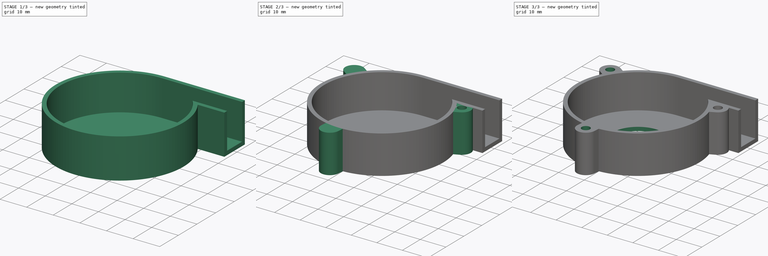
[diagram: build sequence overview — one tinted view per stage of 3, left to right]
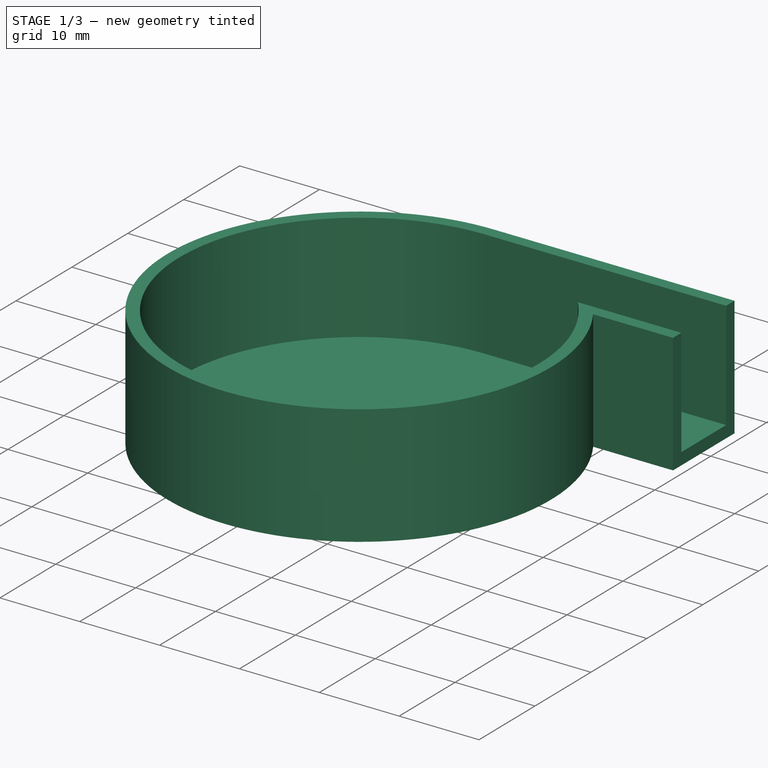
[diagram: stage 1 of 3 — iso view after this stage's code; geometry added in this stage tinted green]
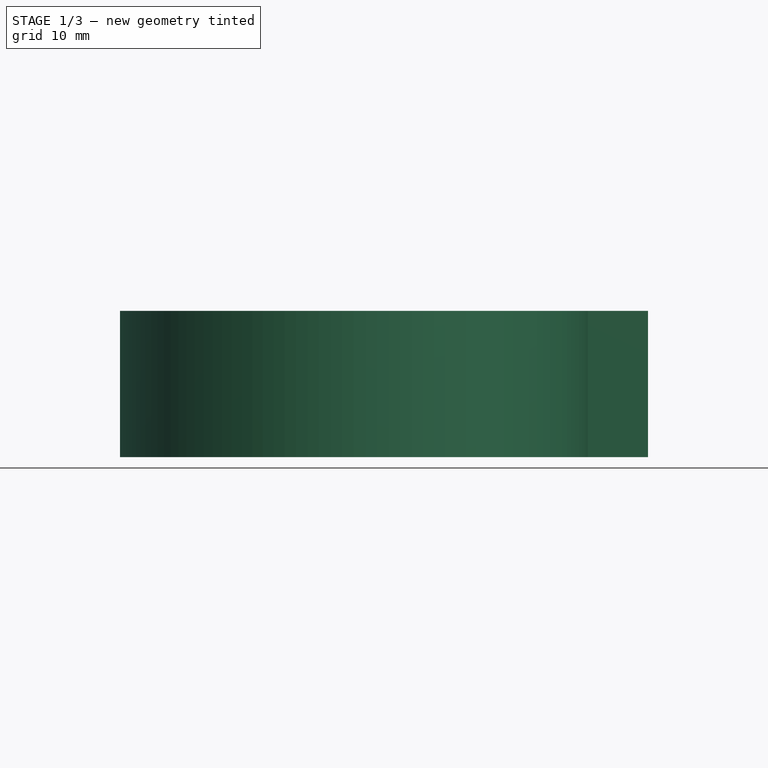
[diagram: stage 1 of 3 — front view after this stage's code; geometry added in this stage tinted green]
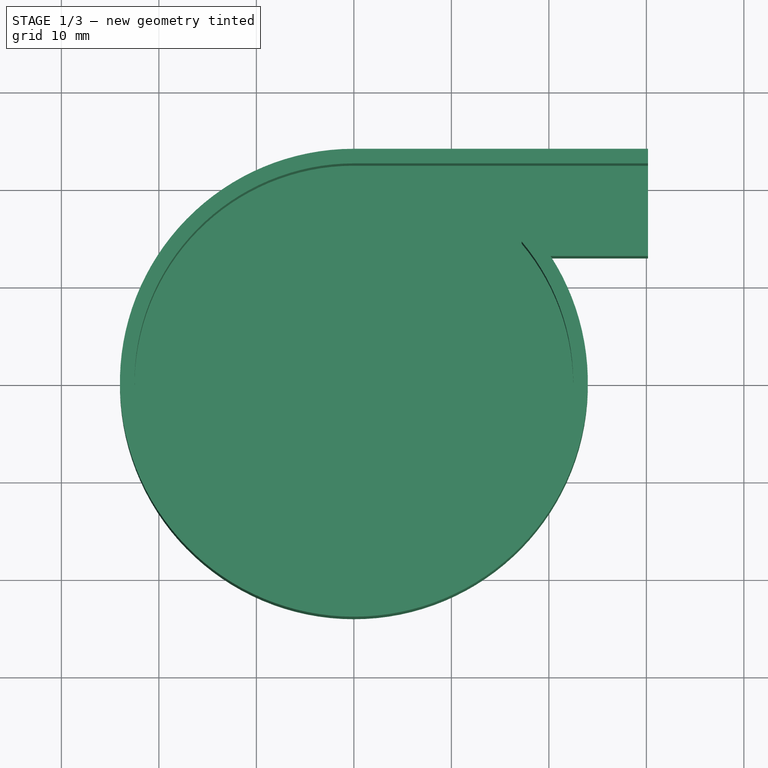
[diagram: stage 1 of 3 — top view after this stage's code; geometry added in this stage tinted green]
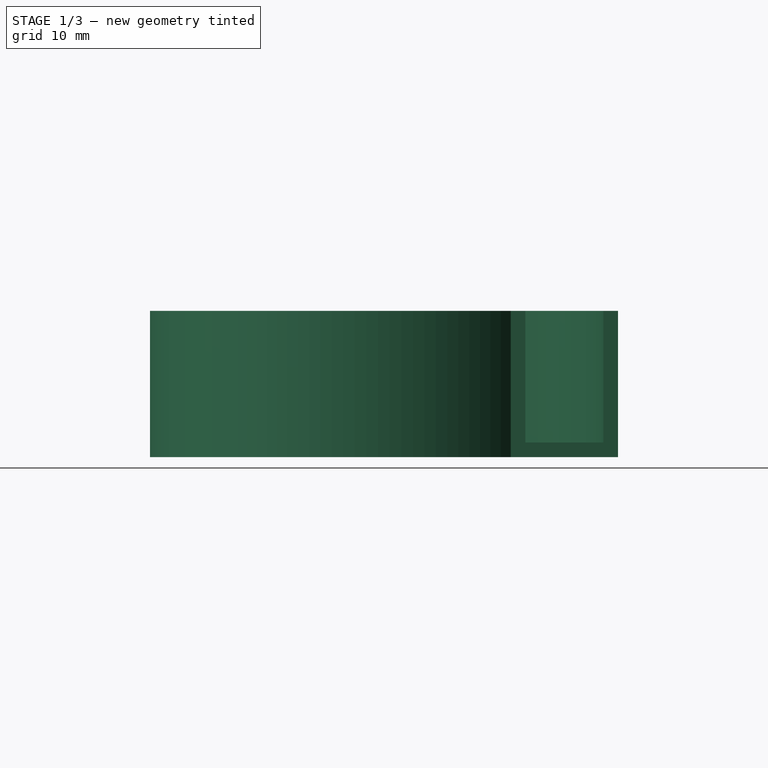
[diagram: stage 1 of 3 — right view after this stage's code; geometry added in this stage tinted green]
FCSTD DOCUMENT  (FreeCAD 0.16R5239 (Git))
Label: fan-case-front2
License: All rights reserved
LicenseURL: http://en.wikipedia.org/wiki/All_rights_reserved
objects: Sketcher::SketchObject×5, PartDesign::Pocket×3, PartDesign::Pad×2, PartDesign::PolarPattern×2
note: 17 computed .brp shape members not serialized (recipe doc carries the construction recipe); baked Part::Feature solids carry a one-line shape summary decoded from their .brp

FEATURE [Sketcher::SketchObject] Sketch
  sketch-geometry (4):
    g0: ArcOfCircle CenterX=0 CenterY=0 CenterZ=0 NormalX=0 NormalY=0 NormalZ=1 Radius=24 StartAngle=1.5708 EndAngle=6.8556
    g1: LineSegment StartX=-2e-12 StartY=24 StartZ=0 EndX=30.1742 EndY=24 EndZ=0
    g2: LineSegment StartX=30.1742 StartY=24 StartZ=0 EndX=30.1742 EndY=13 EndZ=0
    g3: LineSegment StartX=30.1742 StartY=13 StartZ=0 EndX=20.1742 EndY=13 EndZ=0
  constraints (12):
    c: Coincident(g0,g-1)
    c: Radius(g0) = 24
    c: Horizontal(g1)
    c: Coincident(g1,g2)
    c: Vertical(g2)
    c: Coincident(g2,g3)
    c: Horizontal(g3)
    c: PointOnObject(g1,g-2)
    c: Coincident(g0,g3)
    c: Coincident(g1,g0)
    c: DistanceY(g2) = -11
    c: DistanceX(g0,g2) = 10
FEATURE [PartDesign::Pad] Pad
  Length = 15
  Length2 = 100
  Sketch = -> Sketch
  Type = 0
FEATURE [Sketcher::SketchObject] Sketch001
  ExternalGeometry = -> [Pad]
  Placement = pos=(0,0,15) rot=(0,0,1;0rad)
  Support = -> Pad [Face6]
  sketch-geometry (4):
    g0: ArcOfCircle CenterX=0 CenterY=0 CenterZ=0 NormalX=0 NormalY=0 NormalZ=1 Radius=22.5 StartAngle=1.5708 EndAngle=6.98348
    g1: LineSegment StartX=0 StartY=22.5 StartZ=0 EndX=30.1742 EndY=22.5 EndZ=0
    g2: LineSegment StartX=30.1742 StartY=22.5 StartZ=0 EndX=30.1742 EndY=14.5 EndZ=0
    g3: LineSegment StartX=30.1742 StartY=14.5 StartZ=0 EndX=17.2047 EndY=14.5 EndZ=0
  constraints (11):
    c: Coincident(g0,g-1)
    c: PointOnObject(g0,g-2)
    c: Tangent(g0,g1) = 1.5708
    c: Coincident(g1,g2)
    c: Coincident(g2,g3)
    c: Horizontal(g3)
    c: Coincident(g3,g0)
    c: Vertical(g2)
    c: PointOnObject(g1,g-3)
    c: DistanceY(g1,g-3) = 1.5
    c: DistanceY(g2,g-3) = -1.5
FEATURE [PartDesign::Pocket] Pocket
  Length = 13.5
  Sketch = -> Sketch001
  Type = 0
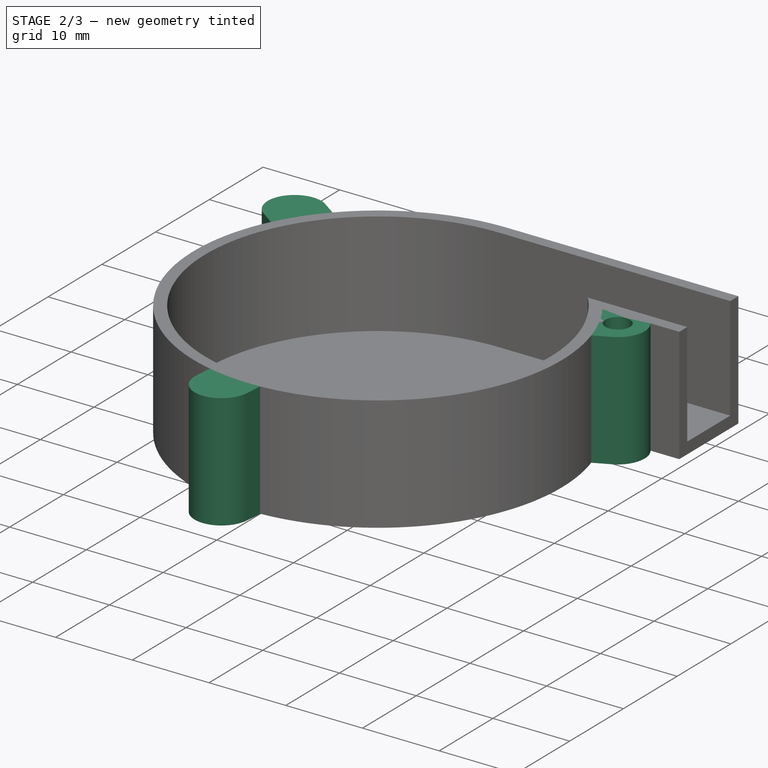
[diagram: stage 2 of 3 — iso view after this stage's code; geometry added in this stage tinted green]
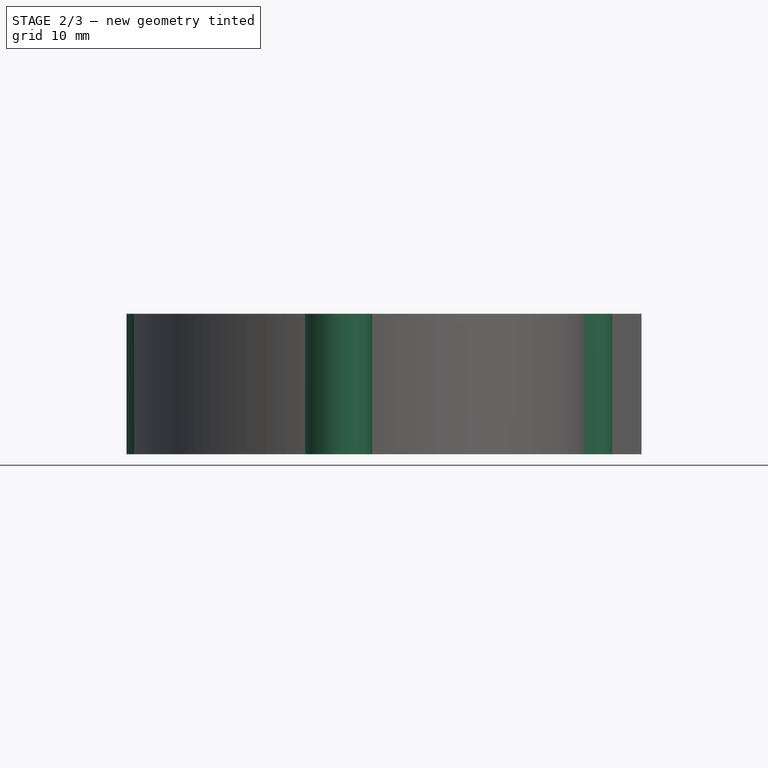
[diagram: stage 2 of 3 — front view after this stage's code; geometry added in this stage tinted green]
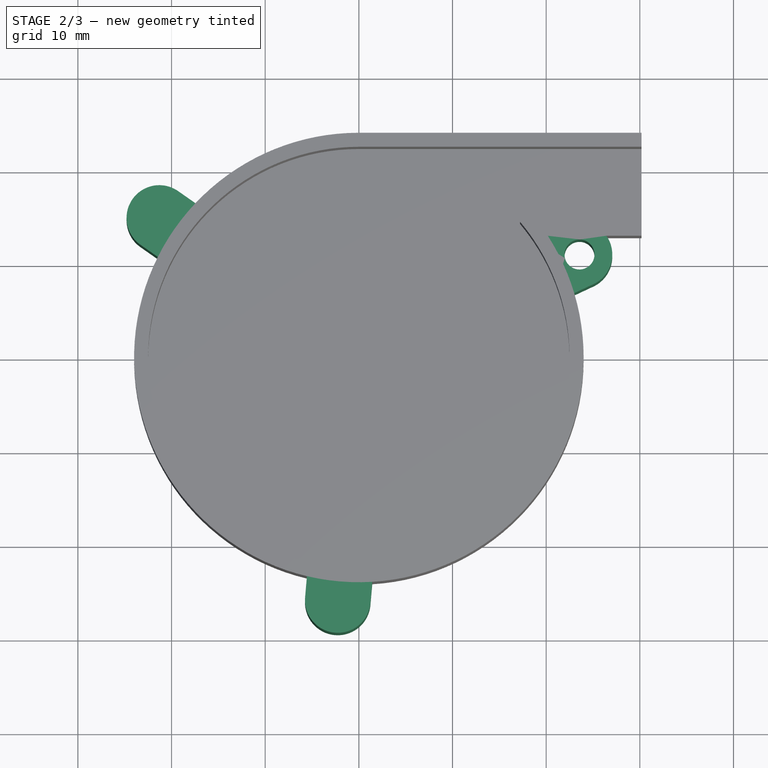
[diagram: stage 2 of 3 — top view after this stage's code; geometry added in this stage tinted green]
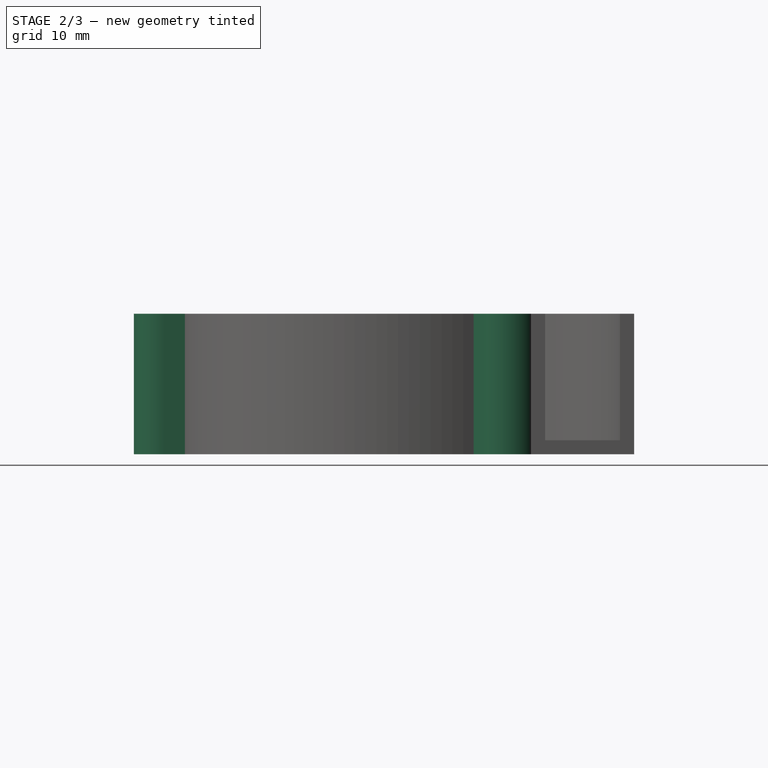
[diagram: stage 2 of 3 — right view after this stage's code; geometry added in this stage tinted green]
FEATURE [Sketcher::SketchObject] Sketch007
  ExternalGeometry = -> [Pocket]
  Placement = pos=(0,0,15) rot=(0,0,1;0rad)
  Support = -> Pocket [Face5]
  sketch-geometry (5):
    g0: ArcOfCircle CenterX=23.5584 CenterY=11 CenterZ=0 NormalX=0 NormalY=0 NormalZ=1 Radius=3.5 StartAngle=5.14923 EndAngle=8.29082
    g1: LineSegment StartX=21.6197 StartY=6.23202 StartZ=0 EndX=25.0392 EndY=7.82867 EndZ=0
    g2: LineSegment StartX=18.6582 StartY=12.5747 StartZ=0 EndX=22.0777 EndY=14.1713 EndZ=0
    g3: ArcOfCircle CenterX=0 CenterY=0 CenterZ=0 NormalX=0 NormalY=0 NormalZ=1 Radius=22.5 StartAngle=0.280649 EndAngle=0.593028
    g4: LineSegment [constr] StartX=17.2047 StartY=14.5 StartZ=0 EndX=23.5585 EndY=14.5 EndZ=0
  constraints (17):
    c: Radius(g0) = 3.5
    c: Tangent(g1,g0)
    c: Tangent(g2,g0)
    c: Parallel(g2,g1)
    c: Equal(g1,g2)
    c: Coincident(g0,g1)
    c: Coincident(g0,g2)
    c: Coincident(g3,g-1)
    c: Coincident(g3,g1)
    c: PointOnObject(g3,g2)
    c: Coincident(g2,g3)
    c: Distance(g1) = 3.77389
    c: PointOnObject(g2,g-3)
    c: Coincident(g4,g-3)
    c: Horizontal(g4)
    c: Tangent(g4,g0)
    c: PointOnObject(g4,g0)
FEATURE [PartDesign::Pad] Pad001
  Length = 10
  Length2 = 100
  Reversed = true
  Sketch = -> Sketch007
  Type = 3
  UpToFace = -> Pocket [Face4]
FEATURE [PartDesign::PolarPattern] PolarPattern
  Angle = 360
  Axis = -> Sketch007 [N_Axis]
  Occurrences = 3
  Originals = -> [Pad001]
FEATURE [Sketcher::SketchObject] Sketch008
  ExternalGeometry = -> [PolarPattern]
  Placement = pos=(0,0,15) rot=(0,0,1;0rad)
  Support = -> PolarPattern [Face39]
  sketch-geometry (1):
    g0: Circle CenterX=23.5584 CenterY=11 CenterZ=0 NormalX=0 NormalY=0 NormalZ=1 Radius=1.6
  constraints (2):
    c: Coincident(g0,g-3)
    c: Radius(g0) = 1.6
FEATURE [PartDesign::Pocket] Pocket001
  Length = 0
  Sketch = -> Sketch008
  Type = 3
  UpToFace = -> PolarPattern [Face4]
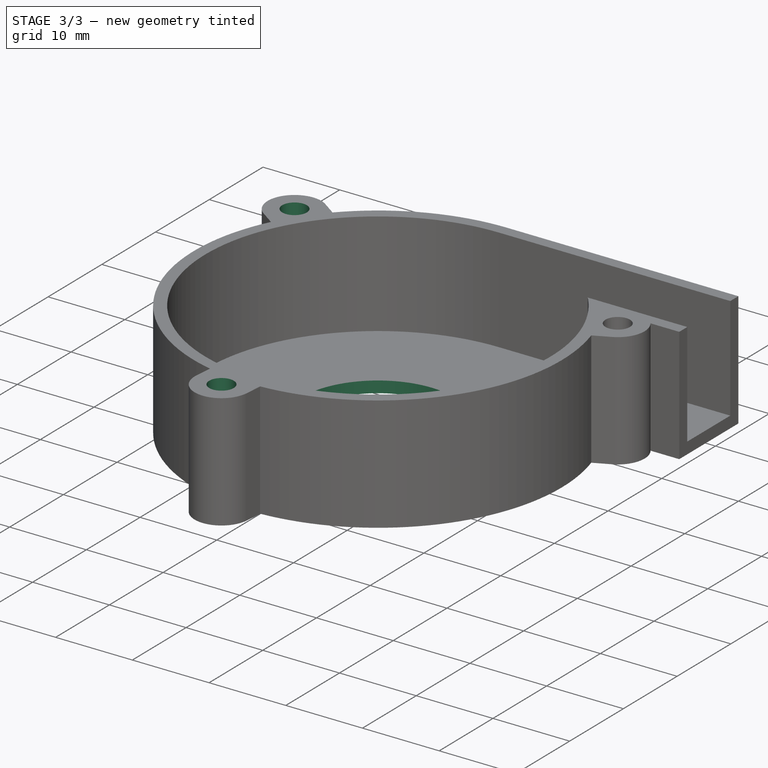
[diagram: stage 3 of 3 — iso view after this stage's code; geometry added in this stage tinted green]
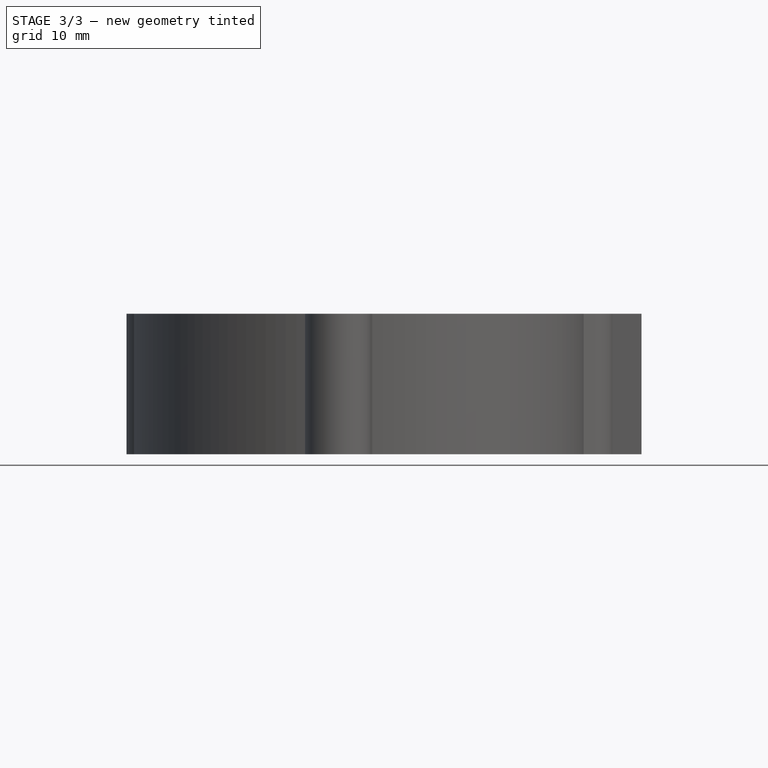
[diagram: stage 3 of 3 — front view after this stage's code; geometry added in this stage tinted green]
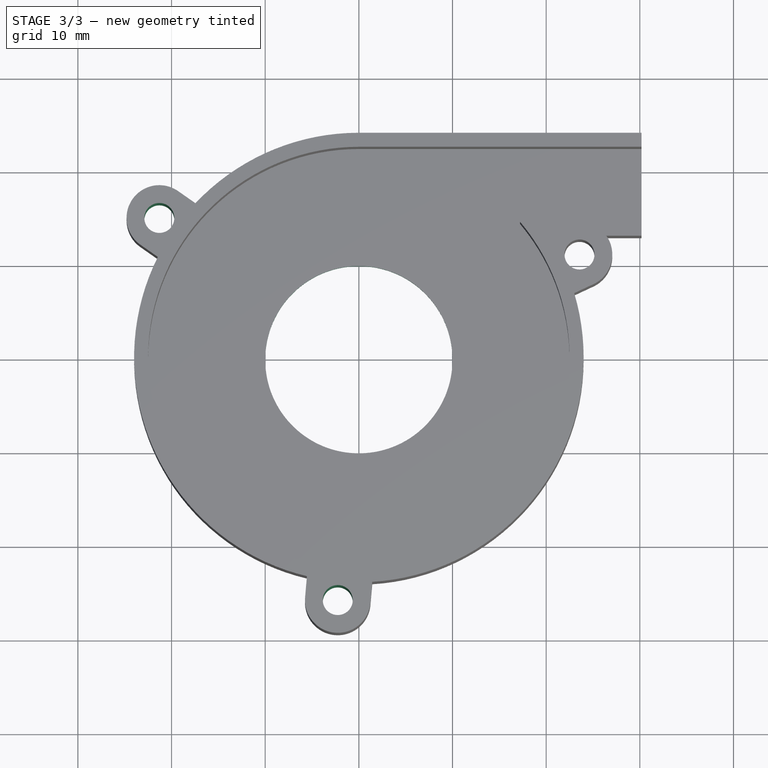
[diagram: stage 3 of 3 — top view after this stage's code; geometry added in this stage tinted green]
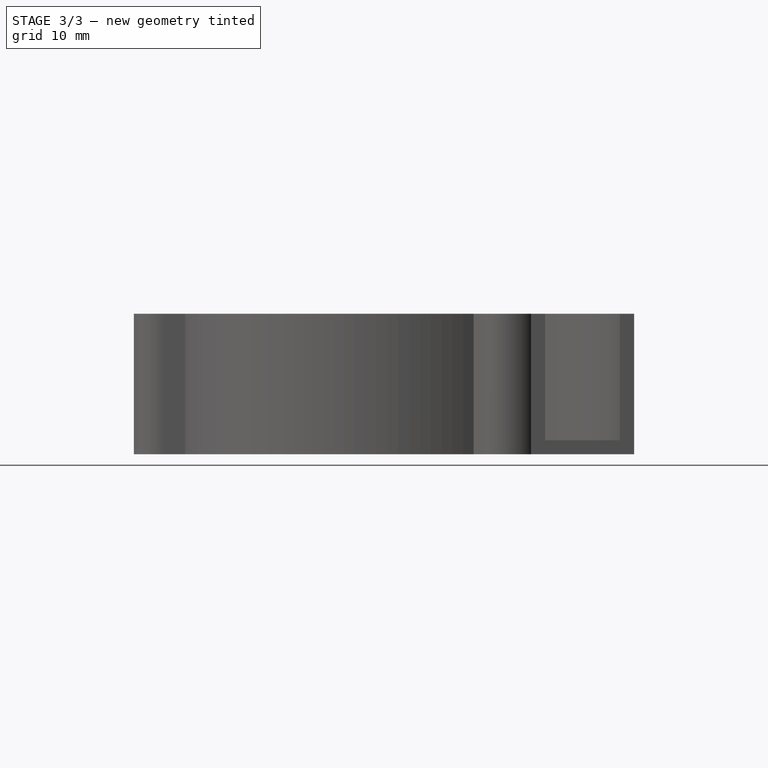
[diagram: stage 3 of 3 — right view after this stage's code; geometry added in this stage tinted green]
FEATURE [PartDesign::PolarPattern] PolarPattern001
  Angle = 360
  Axis = -> Sketch008 [N_Axis]
  Occurrences = 3
  Originals = -> [Pocket001]
FEATURE [Sketcher::SketchObject] Sketch009
  Placement = pos=(0,0,0) rot=(1,0,0;3.14159rad)
  Support = -> PolarPattern001 [Face4]
  sketch-geometry (1):
    g0: Circle CenterX=0 CenterY=0 CenterZ=0 NormalX=0 NormalY=0 NormalZ=1 Radius=10
  constraints (2):
    c: Coincident(g0,g-1)
    c: Radius(g0) = 10
FEATURE [PartDesign::Pocket] Pocket002
  Length = 5
  Sketch = -> Sketch009
  Type = 0
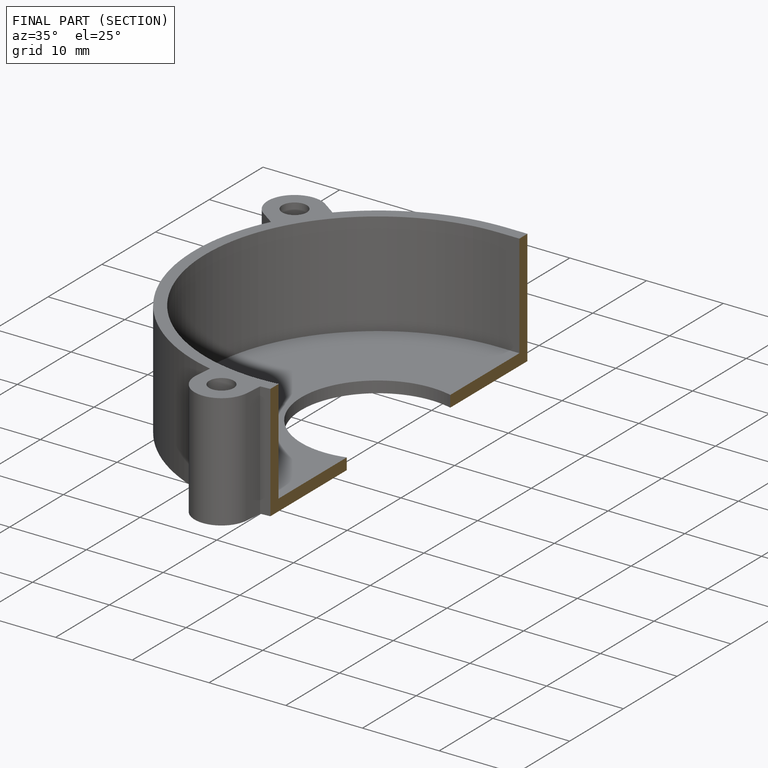
[diagram: finished part — half-section view (interior)]
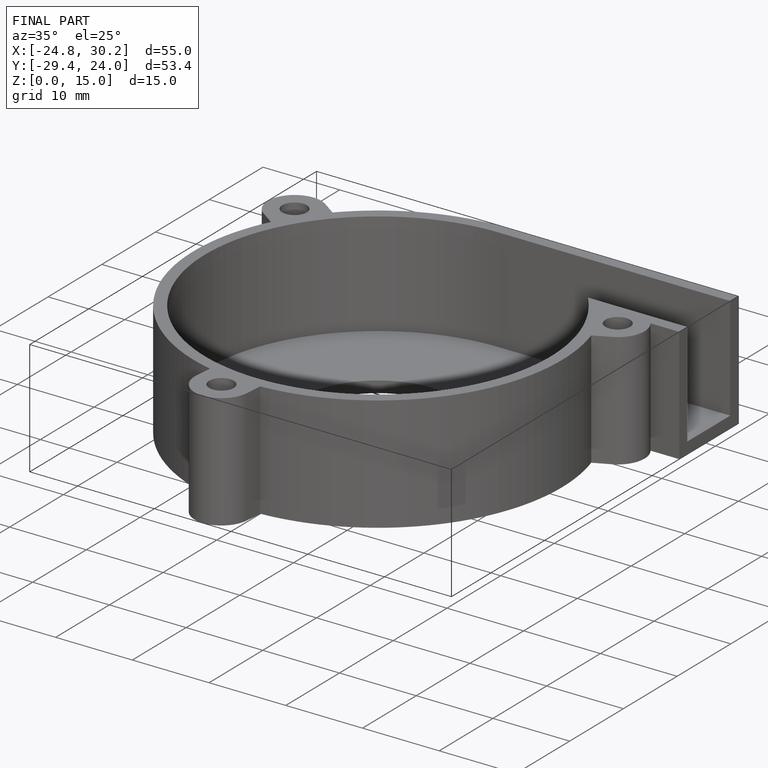
[diagram: finished part — iso view with bounding-box wireframe]
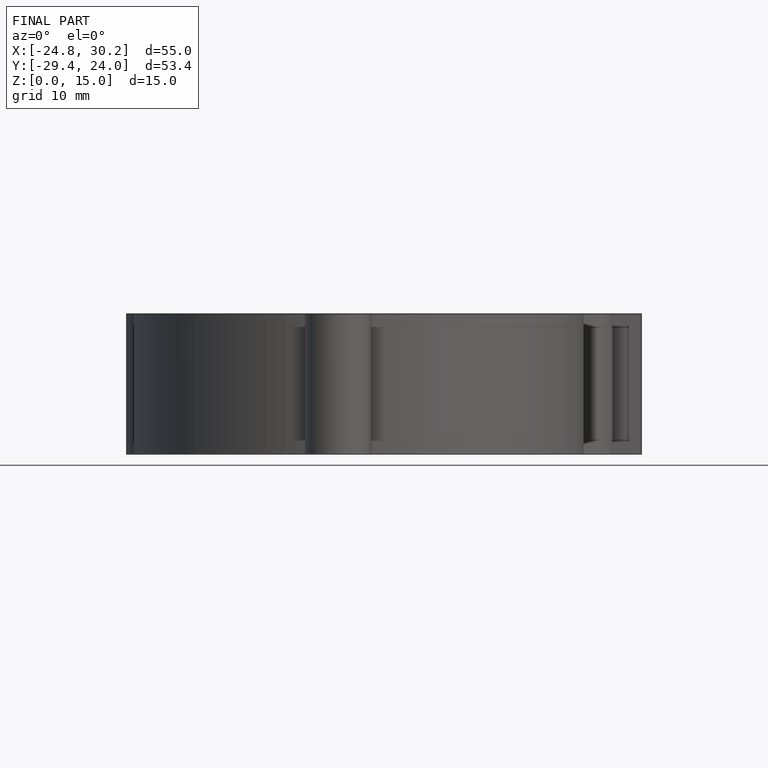
[diagram: finished part — front view with bounding-box wireframe]
